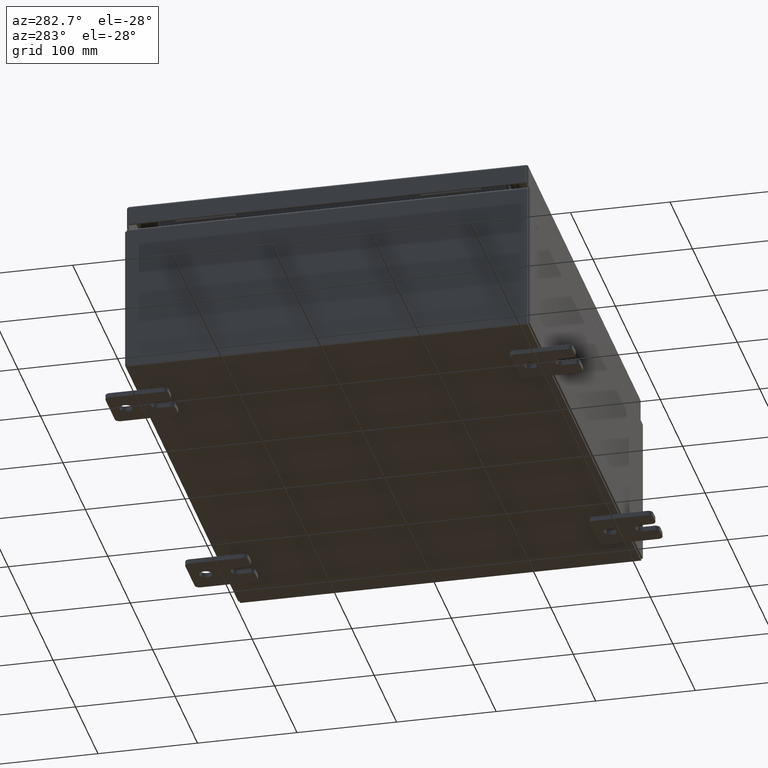
[diagram: clean part render]
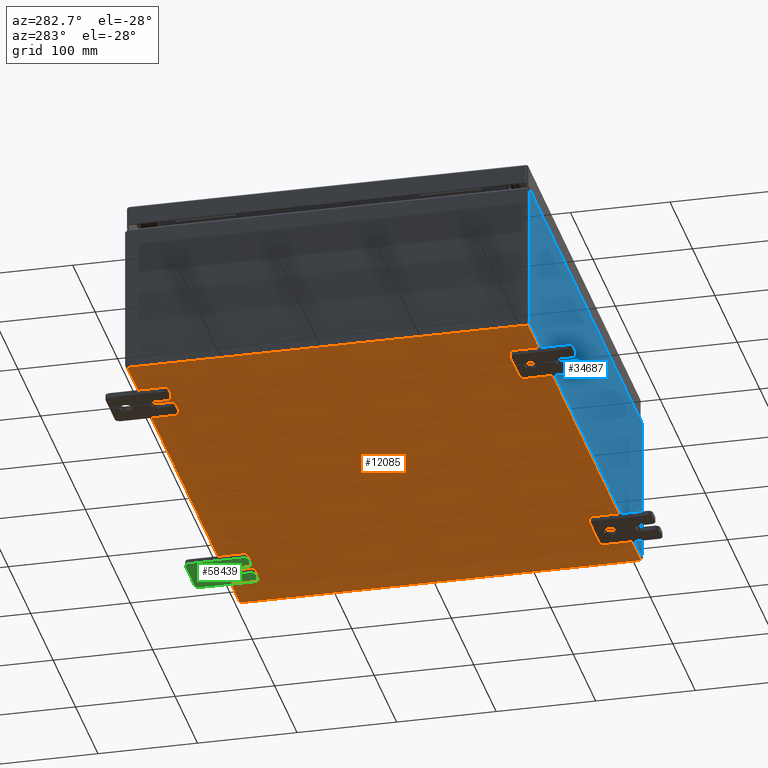
[diagram: same view with three faces highlighted in distinct colors, each labeled with its STEP entity id]
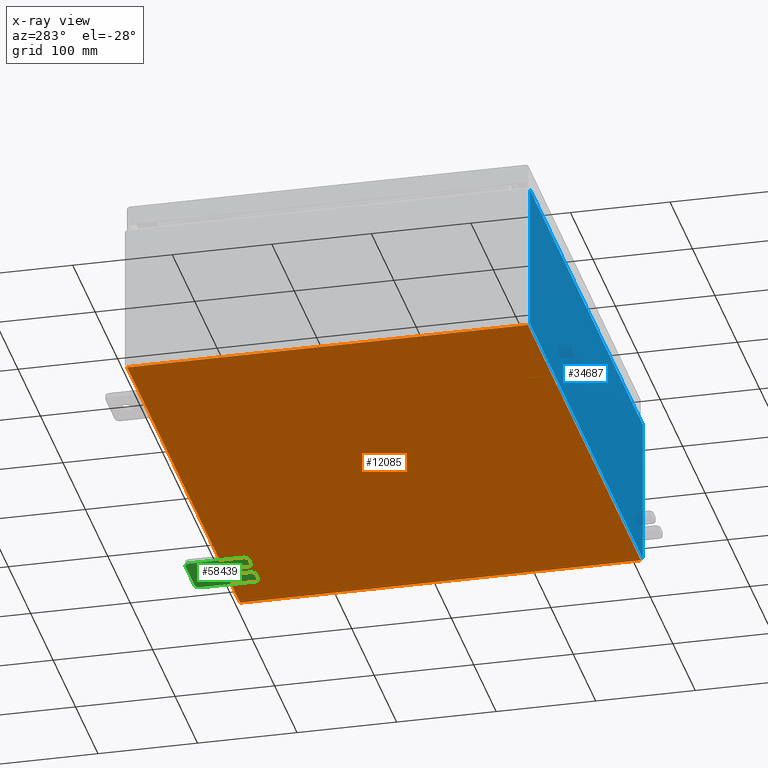
[diagram: x-ray of the same camera — body ghosted, the three highlighted faces saturated]
A machine part, auxiliary view with three faces highlighted in distinct colors.
The next image is the same camera in x-ray (body ghosted, the three faces saturated) — at least one of them is partly hidden behind the body in this view.
Their STEP definitions:

[orange] entity #12085 — the highlighted planar face has unit normal (0, 0, -1).
#604 = DIRECTION ( 'NONE',  ( -0.0000000000000000000, 1.000000000000000000, -0.0000000000000000000 ) ) ;
#1004 = CARTESIAN_POINT ( 'NONE',  ( 9.912300000000000100, 7.925300000000000000, -0.07469999999999994700 ) ) ;
#2950 = CARTESIAN_POINT ( 'NONE',  ( -9.912300000000000100, -7.925300000000000000, -0.07469999999999994700 ) ) ;
#4719 = CARTESIAN_POINT ( 'NONE',  ( -10.00000000000000000, 7.925300000000000000, -0.07470000000000000300 ) ) ;
#5558 = VERTEX_POINT ( 'NONE', #1004 ) ;
#8997 = ORIENTED_EDGE ( 'NONE', *, *, #22265, .F. ) ;
#11589 = DIRECTION ( 'NONE',  ( -0.0000000000000000000, -1.000000000000000000, -0.0000000000000000000 ) ) ;
#12085 = ADVANCED_FACE ( 'NONE', ( #41994 ), #26243, .T. ) ;
#14507 = VERTEX_POINT ( 'NONE', #54104 ) ;
#16380 = CARTESIAN_POINT ( 'NONE',  ( 9.912300000000000100, -7.925300000000000000, -0.07470000000000000300 ) ) ;
#16389 = AXIS2_PLACEMENT_3D ( 'NONE', #24788, #24710, #24571 ) ;
#17116 = VERTEX_POINT ( 'NONE', #16380 ) ;
#18950 = ORIENTED_EDGE ( 'NONE', *, *, #36583, .T. ) ;
#22265 = EDGE_CURVE ( 'NONE', #54307, #17116, #61915, .T. ) ;
#24571 = DIRECTION ( 'NONE',  ( -1.000000000000000000, 0.0000000000000000000, -0.0000000000000000000 ) ) ;
#24710 = DIRECTION ( 'NONE',  ( 0.0000000000000000000, 0.0000000000000000000, -1.000000000000000000 ) ) ;
#24788 = CARTESIAN_POINT ( 'NONE',  ( 0.0000000000000000000, 0.0000000000000000000, -0.07470000000000000300 ) ) ;
#25939 = VECTOR ( 'NONE', #11589, 39.37007874015748100 ) ;
#26243 = PLANE ( 'NONE',  #16389 ) ;
#27444 = LINE ( 'NONE', #45562, #25939 ) ;
#28270 = EDGE_CURVE ( 'NONE', #5558, #17116, #27444, .T. ) ;
#30856 = EDGE_LOOP ( 'NONE', ( #8997, #18950, #47654, #44688 ) ) ;
#31639 = DIRECTION ( 'NONE',  ( 1.000000000000000000, 0.0000000000000000000, 0.0000000000000000000 ) ) ;
#36583 = EDGE_CURVE ( 'NONE', #54307, #14507, #44505, .T. ) ;
#39034 = VECTOR ( 'NONE', #31639, 39.37007874015748100 ) ;
#41091 = CARTESIAN_POINT ( 'NONE',  ( -10.00000000000000000, -7.925300000000000000, -0.07470000000000000300 ) ) ;
#41994 = FACE_OUTER_BOUND ( 'NONE', #30856, .T. ) ;
#44505 = LINE ( 'NONE', #58810, #54221 ) ;
#44688 = ORIENTED_EDGE ( 'NONE', *, *, #28270, .T. ) ;
#45562 = CARTESIAN_POINT ( 'NONE',  ( 9.912300000000000100, 7.925300000000000000, -0.07469999999999994700 ) ) ;
#46959 = LINE ( 'NONE', #4719, #58230 ) ;
#47654 = ORIENTED_EDGE ( 'NONE', *, *, #57130, .F. ) ;
#48287 = DIRECTION ( 'NONE',  ( -1.000000000000000000, -0.0000000000000000000, -0.0000000000000000000 ) ) ;
#54104 = CARTESIAN_POINT ( 'NONE',  ( -9.912300000000000100, 7.925300000000000000, -0.07470000000000000300 ) ) ;
#54221 = VECTOR ( 'NONE', #604, 39.37007874015748100 ) ;
#54307 = VERTEX_POINT ( 'NONE', #2950 ) ;
#57130 = EDGE_CURVE ( 'NONE', #5558, #14507, #46959, .T. ) ;
#58230 = VECTOR ( 'NONE', #48287, 39.37007874015748100 ) ;
#58810 = CARTESIAN_POINT ( 'NONE',  ( -9.912300000000000100, -7.925300000000000000, -0.07469999999999994700 ) ) ;
#61915 = LINE ( 'NONE', #41091, #39034 ) ;

[blue] entity #34687 — the highlighted planar face has unit normal (-0, 1, -0).
#203 = VERTEX_POINT ( 'NONE', #16549 ) ;
#739 = EDGE_CURVE ( 'NONE', #203, #4005, #54475, .T. ) ;
#2538 = VECTOR ( 'NONE', #33957, 39.37007874015748100 ) ;
#3511 = VERTEX_POINT ( 'NONE', #11728 ) ;
#3593 = EDGE_CURVE ( 'NONE', #55427, #36739, #35539, .T. ) ;
#3960 = EDGE_CURVE ( 'NONE', #35296, #55427, #61761, .T. ) ;
#4005 = VERTEX_POINT ( 'NONE', #26838 ) ;
#4114 = LINE ( 'NONE', #62484, #2538 ) ;
#4168 = DIRECTION ( 'NONE',  ( 0.0000000000000000000, -1.000000000000000000, 0.0000000000000000000 ) ) ;
#4976 = ORIENTED_EDGE ( 'NONE', *, *, #33458, .F. ) ;
#5505 = VERTEX_POINT ( 'NONE', #19167 ) ;
#7695 = AXIS2_PLACEMENT_3D ( 'NONE', #10137, #44168, #15073 ) ;
#7888 = VERTEX_POINT ( 'NONE', #16346 ) ;
#8319 = DIRECTION ( 'NONE',  ( -1.000000000000000000, -0.0000000000000000000, -0.0000000000000000000 ) ) ;
#8797 = LINE ( 'NONE', #32289, #33302 ) ;
#9410 = CARTESIAN_POINT ( 'NONE',  ( -9.925300000000000000, 0.0000000000000000000, 2.925300000000000500 ) ) ;
#10137 = CARTESIAN_POINT ( 'NONE',  ( 8.905875000000000000, 0.0000000000000000000, 2.874950000000000600 ) ) ;
#10881 = CARTESIAN_POINT ( 'NONE',  ( -8.924550000000000000, -0.0000000000000000000, 0.0000000000000000000 ) ) ;
#10981 = LINE ( 'NONE', #43926, #35420 ) ;
#11548 = VECTOR ( 'NONE', #8319, 39.37007874015748100 ) ;
#11728 = CARTESIAN_POINT ( 'NONE',  ( 8.924550000000000000, 0.0000000000000000000, 2.874950000000000600 ) ) ;
#13030 = CARTESIAN_POINT ( 'NONE',  ( -8.887200000000000000, -0.0000000000000000000, 2.874950000000000600 ) ) ;
#13284 = DIRECTION ( 'NONE',  ( 0.0000000000000000000, 0.0000000000000000000, 1.000000000000000000 ) ) ;
#13327 = ORIENTED_EDGE ( 'NONE', *, *, #58960, .F. ) ;
#15073 = DIRECTION ( 'NONE',  ( 0.0000000000000000000, 0.0000000000000000000, -1.000000000000000000 ) ) ;
#15215 = DIRECTION ( 'NONE',  ( 1.000000000000000000, 0.0000000000000000000, 0.0000000000000000000 ) ) ;
#15834 = ORIENTED_EDGE ( 'NONE', *, *, #59076, .T. ) ;
#16346 = CARTESIAN_POINT ( 'NONE',  ( 9.925300000000000000, 0.0000000000000000000, 2.925300000000000500 ) ) ;
#16549 = CARTESIAN_POINT ( 'NONE',  ( -8.887200000000000000, 1.024442997624098700E-016, 2.912300000000000600 ) ) ;
#16585 = ORIENTED_EDGE ( 'NONE', *, *, #3593, .F. ) ;
#17471 = VECTOR ( 'NONE', #58387, 39.37007874015748100 ) ;
#17760 = EDGE_LOOP ( 'NONE', ( #16585, #42420, #58935, #35294, #13327, #4976, #28706, #15834, #47190, #28168, #53927, #56644 ) ) ;
#18244 = CARTESIAN_POINT ( 'NONE',  ( -9.925300000000000000, 0.0000000000000000000, -2.925299999999999600 ) ) ;
#18673 = DIRECTION ( 'NONE',  ( -0.0000000000000000000, 1.000000000000000000, -0.0000000000000000000 ) ) ;
#18889 = CARTESIAN_POINT ( 'NONE',  ( -8.905874999999998200, 0.0000000000000000000, 2.874950000000000600 ) ) ;
#19167 = CARTESIAN_POINT ( 'NONE',  ( -9.925300000000000000, 0.0000000000000000000, 2.925300000000000500 ) ) ;
#20517 = AXIS2_PLACEMENT_3D ( 'NONE', #52562, #4168, #38354 ) ;
#21192 = DIRECTION ( 'NONE',  ( 0.0000000000000000000, 0.0000000000000000000, -1.000000000000000000 ) ) ;
#22690 = FACE_OUTER_BOUND ( 'NONE', #17760, .T. ) ;
#24338 = VERTEX_POINT ( 'NONE', #28998 ) ;
#24495 = DIRECTION ( 'NONE',  ( 0.0000000000000000000, 0.0000000000000000000, -1.000000000000000000 ) ) ;
#24586 = LINE ( 'NONE', #18244, #11548 ) ;
#26838 = CARTESIAN_POINT ( 'NONE',  ( 8.887200000000000000, 0.0000000000000000000, 2.912300000000000600 ) ) ;
#27122 = CARTESIAN_POINT ( 'NONE',  ( -9.925300000000000000, 0.0000000000000000000, -2.925299999999999600 ) ) ;
#27306 = VECTOR ( 'NONE', #32756, 39.37007874015748100 ) ;
#27970 = DIRECTION ( 'NONE',  ( -0.0000000000000000000, -0.0000000000000000000, 1.000000000000000000 ) ) ;
#28168 = ORIENTED_EDGE ( 'NONE', *, *, #41618, .T. ) ;
#28706 = ORIENTED_EDGE ( 'NONE', *, *, #35283, .F. ) ;
#28998 = CARTESIAN_POINT ( 'NONE',  ( 9.925300000000000000, 0.0000000000000000000, -2.925299999999999600 ) ) ;
#31411 = VECTOR ( 'NONE', #27970, 39.37007874015748100 ) ;
#31688 = EDGE_CURVE ( 'NONE', #7888, #24338, #4114, .T. ) ;
#32289 = CARTESIAN_POINT ( 'NONE',  ( 8.924549999999875600, -0.0000000000000000000, -3.873765880731832600E-013 ) ) ;
#32756 = DIRECTION ( 'NONE',  ( 0.0000000000000000000, 0.0000000000000000000, 1.000000000000000000 ) ) ;
#33302 = VECTOR ( 'NONE', #46726, 39.37007874015748100 ) ;
#33458 = EDGE_CURVE ( 'NONE', #3511, #43757, #38667, .T. ) ;
#33527 = PLANE ( 'NONE',  #20517 ) ;
#33957 = DIRECTION ( 'NONE',  ( 0.0000000000000000000, 0.0000000000000000000, -1.000000000000000000 ) ) ;
#34687 = ADVANCED_FACE ( 'NONE', ( #22690 ), #33527, .F. ) ;
#35283 = EDGE_CURVE ( 'NONE', #47791, #3511, #8797, .T. ) ;
#35294 = ORIENTED_EDGE ( 'NONE', *, *, #739, .T. ) ;
#35296 = VERTEX_POINT ( 'NONE', #13030 ) ;
#35385 = DIRECTION ( 'NONE',  ( 1.000000000000000000, 0.0000000000000000000, 0.0000000000000000000 ) ) ;
#35420 = VECTOR ( 'NONE', #24495, 39.37007874015748100 ) ;
#35539 = LINE ( 'NONE', #10881, #59539 ) ;
#36739 = VERTEX_POINT ( 'NONE', #40384 ) ;
#37856 = EDGE_CURVE ( 'NONE', #203, #35296, #10981, .T. ) ;
#38354 = DIRECTION ( 'NONE',  ( 0.0000000000000000000, -0.0000000000000000000, -1.000000000000000000 ) ) ;
#38667 = CIRCLE ( 'NONE', #7695, 0.01867500000000003900 ) ;
#40384 = CARTESIAN_POINT ( 'NONE',  ( -8.924550000000000000, 0.0000000000000000000, 2.925300000000000500 ) ) ;
#41618 = EDGE_CURVE ( 'NONE', #24338, #45413, #24586, .T. ) ;
#42420 = ORIENTED_EDGE ( 'NONE', *, *, #3960, .F. ) ;
#42700 = CARTESIAN_POINT ( 'NONE',  ( -9.925300000000000000, 0.0000000000000000000, 2.925300000000000500 ) ) ;
#43034 = EDGE_CURVE ( 'NONE', #45413, #5505, #48639, .T. ) ;
#43757 = VERTEX_POINT ( 'NONE', #51791 ) ;
#43926 = CARTESIAN_POINT ( 'NONE',  ( -8.887200000000000000, -0.0000000000000000000, 0.0000000000000000000 ) ) ;
#44168 = DIRECTION ( 'NONE',  ( -0.0000000000000000000, 1.000000000000000000, -0.0000000000000000000 ) ) ;
#45184 = EDGE_CURVE ( 'NONE', #5505, #36739, #52238, .T. ) ;
#45364 = AXIS2_PLACEMENT_3D ( 'NONE', #18889, #18673, #21192 ) ;
#45413 = VERTEX_POINT ( 'NONE', #27122 ) ;
#46726 = DIRECTION ( 'NONE',  ( -4.340572780400004900E-014, 0.0000000000000000000, -1.000000000000000000 ) ) ;
#47190 = ORIENTED_EDGE ( 'NONE', *, *, #31688, .T. ) ;
#47791 = VERTEX_POINT ( 'NONE', #51682 ) ;
#48639 = LINE ( 'NONE', #42700, #31411 ) ;
#49825 = LINE ( 'NONE', #9410, #62637 ) ;
#51682 = CARTESIAN_POINT ( 'NONE',  ( 8.924550000000000000, 0.0000000000000000000, 2.925300000000000500 ) ) ;
#51791 = CARTESIAN_POINT ( 'NONE',  ( 8.887200000000000000, 0.0000000000000000000, 2.874950000000000600 ) ) ;
#51988 = CARTESIAN_POINT ( 'NONE',  ( 8.887200000000000000, 0.0000000000000000000, 0.0000000000000000000 ) ) ;
#52238 = LINE ( 'NONE', #54449, #53753 ) ;
#52475 = CARTESIAN_POINT ( 'NONE',  ( -8.924549999999998200, 0.0000000000000000000, 2.874950000000000600 ) ) ;
#52562 = CARTESIAN_POINT ( 'NONE',  ( 0.0000000000000000000, 0.0000000000000000000, 0.0000000000000000000 ) ) ;
#52826 = LINE ( 'NONE', #51988, #27306 ) ;
#53753 = VECTOR ( 'NONE', #35385, 39.37007874015748100 ) ;
#53927 = ORIENTED_EDGE ( 'NONE', *, *, #43034, .T. ) ;
#54024 = CARTESIAN_POINT ( 'NONE',  ( -8.887200000000000000, 1.024442997624098700E-016, 2.912300000000000600 ) ) ;
#54449 = CARTESIAN_POINT ( 'NONE',  ( -9.925300000000000000, 0.0000000000000000000, 2.925300000000000500 ) ) ;
#54475 = LINE ( 'NONE', #54024, #17471 ) ;
#55427 = VERTEX_POINT ( 'NONE', #52475 ) ;
#56644 = ORIENTED_EDGE ( 'NONE', *, *, #45184, .T. ) ;
#58387 = DIRECTION ( 'NONE',  ( 1.000000000000000000, 0.0000000000000000000, 0.0000000000000000000 ) ) ;
#58935 = ORIENTED_EDGE ( 'NONE', *, *, #37856, .F. ) ;
#58960 = EDGE_CURVE ( 'NONE', #43757, #4005, #52826, .T. ) ;
#59076 = EDGE_CURVE ( 'NONE', #47791, #7888, #49825, .T. ) ;
#59539 = VECTOR ( 'NONE', #13284, 39.37007874015748100 ) ;
#61761 = CIRCLE ( 'NONE', #45364, 0.01867500000000003900 ) ;
#62484 = CARTESIAN_POINT ( 'NONE',  ( 9.925300000000000000, 0.0000000000000000000, 2.925300000000000500 ) ) ;
#62637 = VECTOR ( 'NONE', #15215, 39.37007874015748100 ) ;

[green] entity #58439 — the highlighted planar face has unit normal (0, 0, 1).
#308 = VERTEX_POINT ( 'NONE', #48155 ) ;
#1616 = CARTESIAN_POINT ( 'NONE',  ( -0.1879999999999997800, -1.250000000000002400, 0.8099999999999980500 ) ) ;
#1854 = DIRECTION ( 'NONE',  ( 0.0000000000000000000, 0.0000000000000000000, -1.000000000000000000 ) ) ;
#1909 = FACE_BOUND ( 'NONE', #28825, .T. ) ;
#2923 = LINE ( 'NONE', #35588, #53096 ) ;
#3048 = VECTOR ( 'NONE', #16952, 39.37007874015748100 ) ;
#3635 = DIRECTION ( 'NONE',  ( 0.0000000000000000000, 1.000000000000000000, -1.639108796198558100E-015 ) ) ;
#3715 = EDGE_CURVE ( 'NONE', #20592, #13071, #58041, .T. ) ;
#3923 = CARTESIAN_POINT ( 'NONE',  ( -0.1879999999999997800, -1.060000000000001600, 0.8099999999999978300 ) ) ;
#4232 = EDGE_CURVE ( 'NONE', #20592, #13006, #41507, .T. ) ;
#5367 = CARTESIAN_POINT ( 'NONE',  ( -0.1879999999999997800, 0.0000000000000000000, 0.0000000000000000000 ) ) ;
#6167 = LINE ( 'NONE', #11526, #51685 ) ;
#6203 = ORIENTED_EDGE ( 'NONE', *, *, #17320, .T. ) ;
#6476 = AXIS2_PLACEMENT_3D ( 'NONE', #26033, #25896, #25812 ) ;
#7608 = VERTEX_POINT ( 'NONE', #55561 ) ;
#8887 = DIRECTION ( 'NONE',  ( 0.0000000000000000000, 7.189073667537492800E-016, -1.000000000000000000 ) ) ;
#9701 = VECTOR ( 'NONE', #3635, 39.37007874015748100 ) ;
#9746 = VECTOR ( 'NONE', #31416, 39.37007874015748100 ) ;
#10127 = CARTESIAN_POINT ( 'NONE',  ( -0.1880000000000004700, -1.060000000000003400, -0.2499999999999994400 ) ) ;
#11526 = CARTESIAN_POINT ( 'NONE',  ( -0.1879999999999997800, 1.249999999999997600, 0.9999999999999951200 ) ) ;
#12083 = EDGE_CURVE ( 'NONE', #32674, #43108, #43512, .T. ) ;
#12425 = DIRECTION ( 'NONE',  ( 1.000000000000000000, -0.0000000000000000000, -5.163192708025532000E-017 ) ) ;
#12585 = DIRECTION ( 'NONE',  ( -1.000000000000000000, -0.0000000000000000000, 0.0000000000000000000 ) ) ;
#12888 = ORIENTED_EDGE ( 'NONE', *, *, #31707, .T. ) ;
#13006 = VERTEX_POINT ( 'NONE', #10127 ) ;
#13071 = VERTEX_POINT ( 'NONE', #35325 ) ;
#13516 = FACE_OUTER_BOUND ( 'NONE', #22266, .T. ) ;
#13768 = ORIENTED_EDGE ( 'NONE', *, *, #28455, .F. ) ;
#14359 = ORIENTED_EDGE ( 'NONE', *, *, #34819, .F. ) ;
#15037 = CARTESIAN_POINT ( 'NONE',  ( -0.1879999999999997800, 1.059999999999993600, -0.8100000000000089400 ) ) ;
#15098 = EDGE_CURVE ( 'NONE', #24593, #13006, #2923, .T. ) ;
#15263 = PLANE ( 'NONE',  #39207 ) ;
#16181 = LINE ( 'NONE', #50746, #3048 ) ;
#16231 = CARTESIAN_POINT ( 'NONE',  ( -0.1880000000000001900, -0.6249999999999992200, -0.2499999999999998600 ) ) ;
#16952 = DIRECTION ( 'NONE',  ( 0.0000000000000000000, -1.639108796198553600E-015, -1.000000000000000000 ) ) ;
#17320 = EDGE_CURVE ( 'NONE', #41369, #57605, #32736, .T. ) ;
#18141 = EDGE_CURVE ( 'NONE', #41735, #7608, #46911, .T. ) ;
#18557 = ORIENTED_EDGE ( 'NONE', *, *, #41442, .F. ) ;
#18809 = ORIENTED_EDGE ( 'NONE', *, *, #4232, .T. ) ;
#19697 = CARTESIAN_POINT ( 'NONE',  ( -0.1880000000000010000, 0.6249999999999992200, -7.703811342100550500E-020 ) ) ;
#20017 = DIRECTION ( 'NONE',  ( 0.0000000000000000000, 0.0000000000000000000, -1.000000000000000000 ) ) ;
#20214 = DIRECTION ( 'NONE',  ( 1.000000000000000000, 0.0000000000000000000, -0.0000000000000000000 ) ) ;
#20368 = AXIS2_PLACEMENT_3D ( 'NONE', #15037, #48880, #20017 ) ;
#20592 = VERTEX_POINT ( 'NONE', #28223 ) ;
#20884 = ORIENTED_EDGE ( 'NONE', *, *, #51064, .T. ) ;
#21099 = VECTOR ( 'NONE', #60850, 39.37007874015748100 ) ;
#21148 = DIRECTION ( 'NONE',  ( -6.556435184794182400E-016, -1.000000000000000000, -1.639108796198545600E-016 ) ) ;
#21456 = VERTEX_POINT ( 'NONE', #33374 ) ;
#22250 = VERTEX_POINT ( 'NONE', #58969 ) ;
#22266 = EDGE_LOOP ( 'NONE', ( #18557, #6203, #23829, #56945, #29947, #20884, #61605, #56509, #42986, #18809, #49849, #14359, #13768, #30243 ) ) ;
#22354 = CARTESIAN_POINT ( 'NONE',  ( -0.1879999999999997800, 1.249999999999994200, -1.000000000000010400 ) ) ;
#22643 = LINE ( 'NONE', #22354, #21099 ) ;
#22892 = CIRCLE ( 'NONE', #61243, 0.2499999999999999200 ) ;
#23829 = ORIENTED_EDGE ( 'NONE', *, *, #52405, .F. ) ;
#24593 = VERTEX_POINT ( 'NONE', #16231 ) ;
#24600 = DIRECTION ( 'NONE',  ( 0.0000000000000000000, 0.0000000000000000000, -1.000000000000000000 ) ) ;
#24704 = CARTESIAN_POINT ( 'NONE',  ( -0.1879999999999997800, 1.059999999999996500, 0.9999999999999953400 ) ) ;
#25319 = DIRECTION ( 'NONE',  ( -1.000000000000000000, 6.523827964459549700E-016, 5.163192708025532000E-017 ) ) ;
#25812 = DIRECTION ( 'NONE',  ( 0.0000000000000000000, 0.0000000000000000000, -1.000000000000000000 ) ) ;
#25896 = DIRECTION ( 'NONE',  ( -1.000000000000000000, -0.0000000000000000000, 0.0000000000000000000 ) ) ;
#26033 = CARTESIAN_POINT ( 'NONE',  ( -0.1879999999999997800, -1.060000000000002100, 0.4400000000000016700 ) ) ;
#26645 = CIRCLE ( 'NONE', #41592, 0.1900000000000011100 ) ;
#27181 = CIRCLE ( 'NONE', #48321, 0.2499999999999999200 ) ;
#28223 = CARTESIAN_POINT ( 'NONE',  ( -0.1879999999999997800, -1.250000000000004700, -0.4400000000000002200 ) ) ;
#28455 = EDGE_CURVE ( 'NONE', #32674, #308, #48463, .T. ) ;
#28609 = CARTESIAN_POINT ( 'NONE',  ( -0.1879999999999997800, -1.250000000000003100, 0.4400000000000020000 ) ) ;
#28825 = EDGE_LOOP ( 'NONE', ( #52271, #12888 ) ) ;
#29947 = ORIENTED_EDGE ( 'NONE', *, *, #60305, .F. ) ;
#30243 = ORIENTED_EDGE ( 'NONE', *, *, #12083, .T. ) ;
#30308 = AXIS2_PLACEMENT_3D ( 'NONE', #54096, #25319, #58922 ) ;
#31030 = VECTOR ( 'NONE', #55953, 39.37007874015748100 ) ;
#31315 = DIRECTION ( 'NONE',  ( -1.000000000000000000, -0.0000000000000000000, 0.0000000000000000000 ) ) ;
#31416 = DIRECTION ( 'NONE',  ( 6.556435184794182400E-016, 1.000000000000000000, 0.0000000000000000000 ) ) ;
#31707 = EDGE_CURVE ( 'NONE', #58638, #47849, #27181, .T. ) ;
#32058 = CIRCLE ( 'NONE', #50109, 0.1900000000000011100 ) ;
#32582 = CIRCLE ( 'NONE', #30308, 0.2499999999999999200 ) ;
#32674 = VERTEX_POINT ( 'NONE', #57505 ) ;
#32736 = CIRCLE ( 'NONE', #45789, 0.1900000000000011100 ) ;
#33374 = CARTESIAN_POINT ( 'NONE',  ( -0.1879999999999997800, 1.249999999999994700, -0.8100000000000092700 ) ) ;
#34819 = EDGE_CURVE ( 'NONE', #308, #24593, #32582, .T. ) ;
#35325 = CARTESIAN_POINT ( 'NONE',  ( -0.1879999999999997800, -1.250000000000005300, -0.8100000000000047200 ) ) ;
#35588 = CARTESIAN_POINT ( 'NONE',  ( -0.1880000000000001900, -0.6249999999999992200, -0.2499999999999993900 ) ) ;
#36765 = CARTESIAN_POINT ( 'NONE',  ( -0.1879999999999997800, -1.060000000000001200, 0.9999999999999988900 ) ) ;
#37876 = VERTEX_POINT ( 'NONE', #24704 ) ;
#38130 = DIRECTION ( 'NONE',  ( -1.000000000000000000, -0.0000000000000000000, 0.0000000000000000000 ) ) ;
#39207 = AXIS2_PLACEMENT_3D ( 'NONE', #5367, #20214, #53958 ) ;
#40477 = CARTESIAN_POINT ( 'NONE',  ( -0.1879999999999997800, -1.060000000000003400, -0.4400000000000005000 ) ) ;
#40679 = DIRECTION ( 'NONE',  ( 0.0000000000000000000, -1.000000000000000000, 1.639108796198558100E-015 ) ) ;
#41369 = VERTEX_POINT ( 'NONE', #1616 ) ;
#41442 = EDGE_CURVE ( 'NONE', #41369, #43108, #16181, .T. ) ;
#41507 = CIRCLE ( 'NONE', #44874, 0.1900000000000011100 ) ;
#41560 = CARTESIAN_POINT ( 'NONE',  ( -0.1880000000000010000, 0.6249999999999992200, -7.703811342100550500E-020 ) ) ;
#41592 = AXIS2_PLACEMENT_3D ( 'NONE', #60011, #31315, #1854 ) ;
#41720 = CARTESIAN_POINT ( 'NONE',  ( -0.1879999999999997800, -1.060000000000004100, -0.8100000000000050500 ) ) ;
#41735 = VERTEX_POINT ( 'NONE', #42814 ) ;
#42814 = CARTESIAN_POINT ( 'NONE',  ( -0.1879999999999997800, -1.060000000000004500, -1.000000000000006400 ) ) ;
#42830 = DIRECTION ( 'NONE',  ( -1.000000000000000000, -0.0000000000000000000, 0.0000000000000000000 ) ) ;
#42986 = ORIENTED_EDGE ( 'NONE', *, *, #3715, .F. ) ;
#43108 = VERTEX_POINT ( 'NONE', #28609 ) ;
#43512 = CIRCLE ( 'NONE', #6476, 0.1900000000000011400 ) ;
#44541 = EDGE_CURVE ( 'NONE', #41735, #13071, #32058, .T. ) ;
#44874 = AXIS2_PLACEMENT_3D ( 'NONE', #40477, #42830, #47126 ) ;
#44880 = CARTESIAN_POINT ( 'NONE',  ( -0.1879999999999997800, -1.250000000000002200, 0.9999999999999992200 ) ) ;
#45362 = CARTESIAN_POINT ( 'NONE',  ( -0.1880000000000010000, 0.6249999999999992200, 0.2499999999999999200 ) ) ;
#45789 = AXIS2_PLACEMENT_3D ( 'NONE', #3923, #38130, #8887 ) ;
#46371 = DIRECTION ( 'NONE',  ( 0.0000000000000000000, 0.0000000000000000000, -1.000000000000000000 ) ) ;
#46510 = DIRECTION ( 'NONE',  ( 0.0000000000000000000, 0.0000000000000000000, -1.000000000000000000 ) ) ;
#46911 = LINE ( 'NONE', #56927, #9701 ) ;
#47126 = DIRECTION ( 'NONE',  ( 0.0000000000000000000, 0.0000000000000000000, -1.000000000000000000 ) ) ;
#47849 = VERTEX_POINT ( 'NONE', #51876 ) ;
#48155 = CARTESIAN_POINT ( 'NONE',  ( -0.1880000000000001900, -0.6249999999999992200, 0.2500000000000005000 ) ) ;
#48321 = AXIS2_PLACEMENT_3D ( 'NONE', #19697, #53413, #24600 ) ;
#48463 = LINE ( 'NONE', #60098, #9746 ) ;
#48738 = CIRCLE ( 'NONE', #20368, 0.1900000000000011100 ) ;
#48880 = DIRECTION ( 'NONE',  ( -1.000000000000000000, -0.0000000000000000000, 0.0000000000000000000 ) ) ;
#49849 = ORIENTED_EDGE ( 'NONE', *, *, #15098, .F. ) ;
#50109 = AXIS2_PLACEMENT_3D ( 'NONE', #41720, #12585, #46510 ) ;
#50746 = CARTESIAN_POINT ( 'NONE',  ( -0.1879999999999997800, -1.250000000000002200, 0.9999999999999992200 ) ) ;
#51064 = EDGE_CURVE ( 'NONE', #21456, #7608, #48738, .T. ) ;
#51685 = VECTOR ( 'NONE', #40679, 39.37007874015748100 ) ;
#51876 = CARTESIAN_POINT ( 'NONE',  ( -0.1880000000000010000, 0.6249999999999992200, -0.2499999999999999200 ) ) ;
#52271 = ORIENTED_EDGE ( 'NONE', *, *, #56075, .T. ) ;
#52405 = EDGE_CURVE ( 'NONE', #37876, #57605, #6167, .T. ) ;
#53096 = VECTOR ( 'NONE', #21148, 39.37007874015748100 ) ;
#53413 = DIRECTION ( 'NONE',  ( 1.000000000000000000, -0.0000000000000000000, -5.163192708025532000E-017 ) ) ;
#53958 = DIRECTION ( 'NONE',  ( -0.0000000000000000000, 0.0000000000000000000, -1.000000000000000000 ) ) ;
#54096 = CARTESIAN_POINT ( 'NONE',  ( -0.1880000000000001900, -0.6249999999999992200, 6.829619984160658000E-017 ) ) ;
#55561 = CARTESIAN_POINT ( 'NONE',  ( -0.1879999999999997800, 1.059999999999993400, -1.000000000000010000 ) ) ;
#55953 = DIRECTION ( 'NONE',  ( 0.0000000000000000000, -1.639108796198553600E-015, -1.000000000000000000 ) ) ;
#56075 = EDGE_CURVE ( 'NONE', #47849, #58638, #22892, .T. ) ;
#56509 = ORIENTED_EDGE ( 'NONE', *, *, #44541, .T. ) ;
#56927 = CARTESIAN_POINT ( 'NONE',  ( -0.1879999999999997800, -1.250000000000005600, -1.000000000000006200 ) ) ;
#56945 = ORIENTED_EDGE ( 'NONE', *, *, #57458, .T. ) ;
#57458 = EDGE_CURVE ( 'NONE', #37876, #22250, #26645, .T. ) ;
#57505 = CARTESIAN_POINT ( 'NONE',  ( -0.1880000000000004700, -1.060000000000002100, 0.2500000000000005000 ) ) ;
#57605 = VERTEX_POINT ( 'NONE', #36765 ) ;
#58041 = LINE ( 'NONE', #44880, #31030 ) ;
#58439 = ADVANCED_FACE ( 'NONE', ( #1909, #13516 ), #15263, .F. ) ;
#58638 = VERTEX_POINT ( 'NONE', #45362 ) ;
#58922 = DIRECTION ( 'NONE',  ( -6.829619984160660000E-016, -1.000000000000000000, 0.0000000000000000000 ) ) ;
#58969 = CARTESIAN_POINT ( 'NONE',  ( -0.1879999999999997800, 1.249999999999997300, 0.8099999999999935000 ) ) ;
#60011 = CARTESIAN_POINT ( 'NONE',  ( -0.1879999999999997800, 1.059999999999996300, 0.8099999999999938400 ) ) ;
#60098 = CARTESIAN_POINT ( 'NONE',  ( -0.1880000000000005800, -1.250000000000003800, 0.2500000000000005000 ) ) ;
#60305 = EDGE_CURVE ( 'NONE', #21456, #22250, #22643, .T. ) ;
#60850 = DIRECTION ( 'NONE',  ( 0.0000000000000000000, 1.639108796198553600E-015, 1.000000000000000000 ) ) ;
#61243 = AXIS2_PLACEMENT_3D ( 'NONE', #41560, #12425, #46371 ) ;
#61605 = ORIENTED_EDGE ( 'NONE', *, *, #18141, .F. ) ;